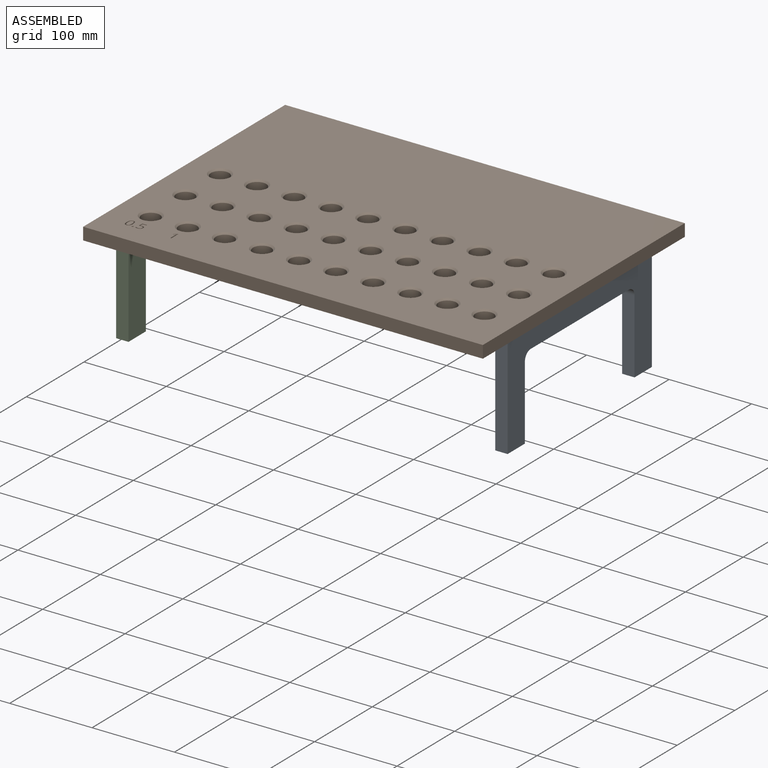
[diagram: assembled view]
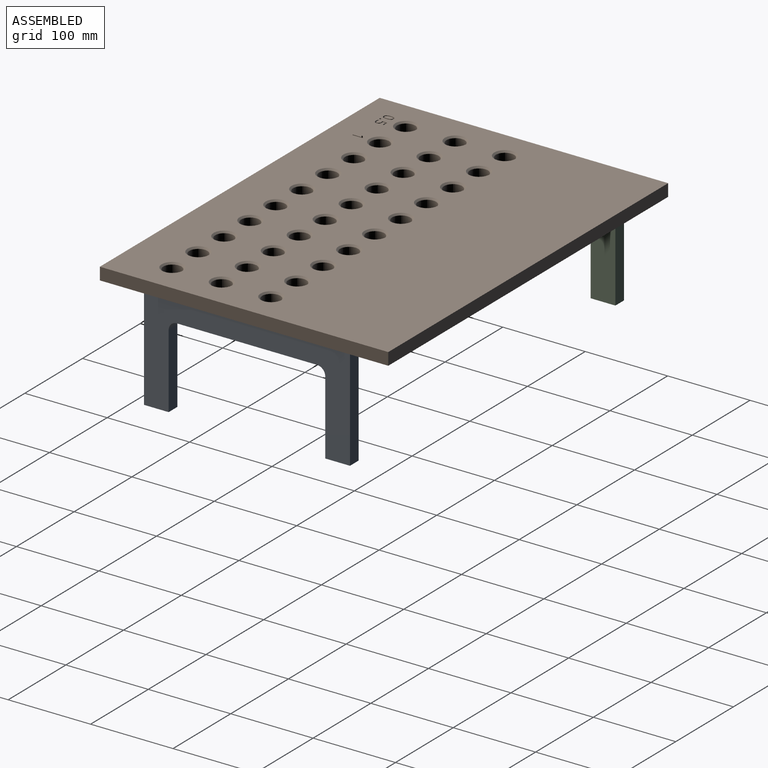
[diagram: assembled view, second angle]
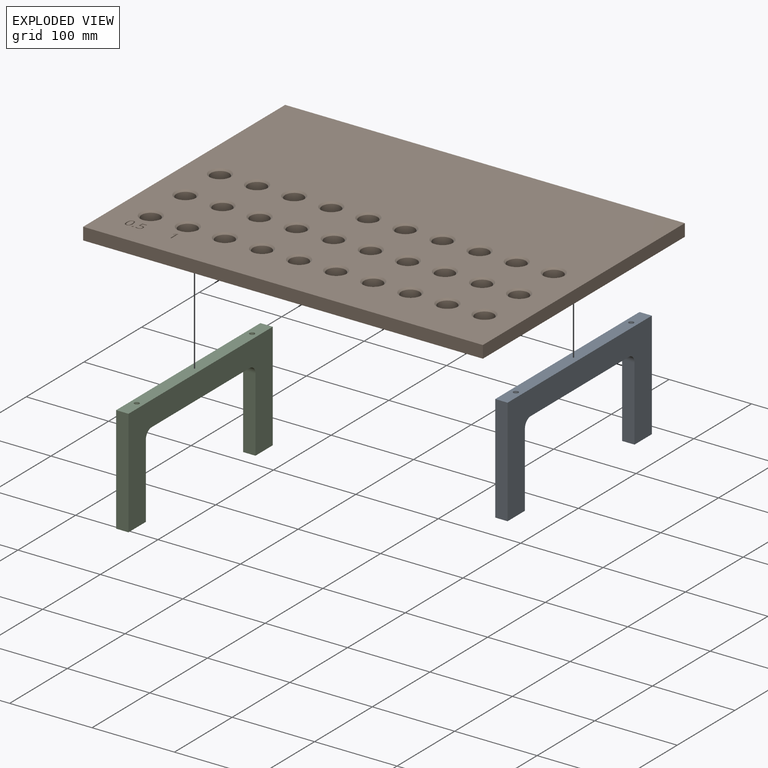
[diagram: exploded view]
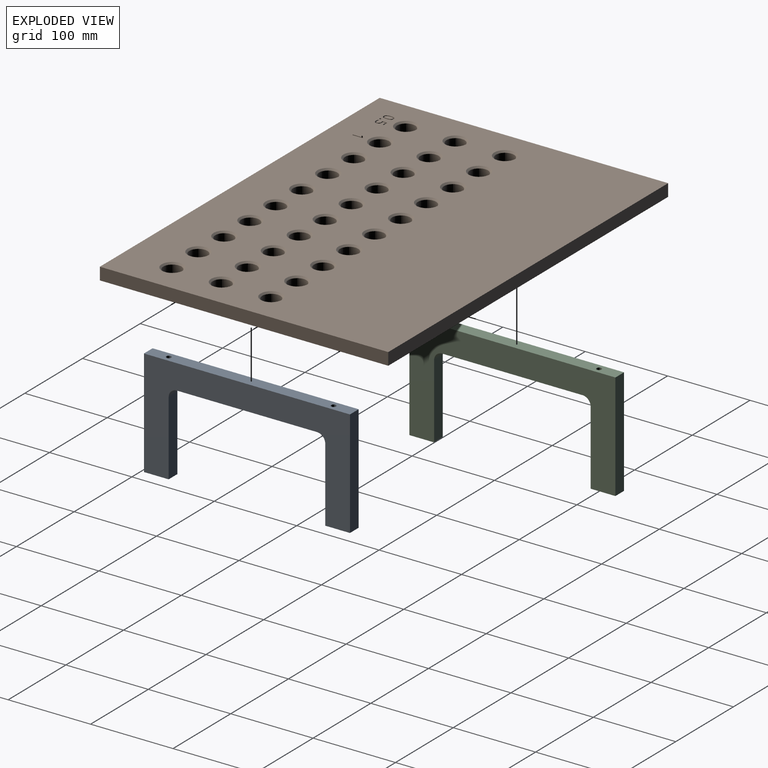
[diagram: exploded view, second angle]
ASSEMBLY  parts=3 mates=3
PART A: 16 faces, bbox 250x15x130 mm
  f0: plane 250x130mm, normal (0,-1,0), area 13542.9mm2, adj f2,f3,f4,f5,f6,f11,f12,f13
  f1: plane 250x130mm, normal (0,1,0), area 13542.9mm2, adj f2,f3,f4,f5,f6,f11,f12,f13
  f2: plane 30x15mm, normal (0,0,-1), area 450mm2, adj f0,f1,f4,f14
  f3: plane 130x15mm, normal (1,0,0), area 1950mm2, adj f0,f1,f5,f6
  f4: plane 130x15mm, normal (-1,0,0), area 1950mm2, adj f0,f1,f2,f6
  f5: plane 30x15mm, normal (0,0,-1), area 450mm2, adj f0,f1,f3,f15
  f6: plane 250x15mm, normal (0,0,1), area 3693.5mm2, adj f0,f1,f3,f4,f8,f10
  f7: cone r=0mm half-angle=59deg, axis (0,0,1), area 33mm2, adj f8
  f8: cylinder r=3mm len=7mm, axis (0,0,1), area 131.9mm2, adj f6,f7
  f9: cone r=0mm half-angle=59deg, axis (0,0,1), area 33mm2, adj f10
  f10: cylinder r=3mm len=7mm, axis (0,0,1), area 131.9mm2, adj f6,f9
  f11: cylinder r=10mm len=15mm, axis (0,-1,0), area 235.6mm2, adj f0,f1,f12,f15
  f12: plane 170x15mm, normal (0,0,-1), area 2550mm2, adj f0,f1,f11,f13
  f13: cylinder r=10mm len=15mm, axis (0,-1,0), area 235.6mm2, adj f0,f1,f12,f14
  f14: plane 90x15mm, normal (1,0,0), area 1350mm2, adj f0,f1,f2,f13
  f15: plane 90x15mm, normal (-1,0,0), area 1350mm2, adj f0,f1,f5,f11
PART B: 149 faces, bbox 485x350x15 mm
  f0: plane 485x350mm, normal (0,0,1), area 153686.1mm2, adj f1,f2,f3,f4,f7,f9,f11,f13
  f1: plane 485x15mm, normal (0,-1,0), area 7275mm2, adj f0,f2,f4,f5
  f2: plane 350x15mm, normal (1,0,0), area 5250mm2, adj f0,f1,f3,f5
  f3: plane 485x15mm, normal (0,1,0), area 7275mm2, adj f0,f2,f4,f5
  f4: plane 350x15mm, normal (-1,0,0), area 5250mm2, adj f0,f1,f3,f5
  f5: plane 485x350mm, normal (0,0,-1), area 150111.5mm2, adj f1,f2,f3,f4,f6,f8,f10,f12
  f6: cylinder r=11mm len=22mm, axis (0,0,1), area 898.5mm2, adj f5,f7
  f7: cone r=11mm half-angle=45deg, axis (0,0,1), area 213.3mm2, adj f0,f6
  f8: cylinder r=11mm len=22mm, axis (0,0,1), area 898.5mm2, adj f5,f9
  f9: cone r=11mm half-angle=45deg, axis (0,0,1), area 213.3mm2, adj f0,f8
  f10: cylinder r=11mm len=22mm, axis (0,0,1), area 898.5mm2, adj f5,f11
  f11: cone r=11mm half-angle=45deg, axis (0,0,1), area 213.3mm2, adj f0,f10
  f12: cylinder r=11mm len=22mm, axis (0,0,1), area 898.5mm2, adj f5,f13
  f13: cone r=11mm half-angle=45deg, axis (0,0,1), area 213.3mm2, adj f0,f12
  f14: cylinder r=11mm len=22mm, axis (0,0,1), area 898.5mm2, adj f5,f15
  f15: cone r=11mm half-angle=45deg, axis (0,0,1), area 213.3mm2, adj f0,f14
  f16: cylinder r=11mm len=22mm, axis (0,0,1), area 898.5mm2, adj f5,f17
  f17: cone r=11mm half-angle=45deg, axis (0,0,1), area 213.3mm2, adj f0,f16
  f18: cylinder r=11mm len=22mm, axis (0,0,1), area 898.5mm2, adj f5,f19
  f19: cone r=11mm half-angle=45deg, axis (0,0,1), area 213.3mm2, adj f0,f18
  f20: cylinder r=11mm len=22mm, axis (0,0,1), area 898.5mm2, adj f5,f21
  f21: cone r=11mm half-angle=45deg, axis (0,0,1), area 213.3mm2, adj f0,f20
  f22: cylinder r=11mm len=22mm, axis (0,0,1), area 898.5mm2, adj f5,f23
  f23: cone r=11mm half-angle=45deg, axis (0,0,1), area 213.3mm2, adj f0,f22
  f24: cylinder r=11mm len=22mm, axis (0,0,1), area 898.5mm2, adj f5,f25
  f25: cone r=11mm half-angle=45deg, axis (0,0,1), area 213.3mm2, adj f0,f24
  f26: cylinder r=11mm len=22mm, axis (0,0,1), area 898.5mm2, adj f5,f27
  f27: cone r=11mm half-angle=45deg, axis (0,0,1), area 213.3mm2, adj f0,f26
  f28: cylinder r=11mm len=22mm, axis (0,0,1), area 898.5mm2, adj f5,f29
  f29: cone r=11mm half-angle=45deg, axis (0,0,1), area 213.3mm2, adj f0,f28
  f30: cylinder r=11mm len=22mm, axis (0,0,1), area 898.5mm2, adj f5,f31
  f31: cone r=11mm half-angle=45deg, axis (0,0,1), area 213.3mm2, adj f0,f30
  f32: cylinder r=11mm len=22mm, axis (0,0,1), area 898.5mm2, adj f5,f33
  f33: cone r=11mm half-angle=45deg, axis (0,0,1), area 213.3mm2, adj f0,f32
  f34: cylinder r=11mm len=22mm, axis (0,0,1), area 898.5mm2, adj f5,f35
  f35: cone r=11mm half-angle=45deg, axis (0,0,1), area 213.3mm2, adj f0,f34
  f36: cylinder r=11mm len=22mm, axis (0,0,1), area 898.5mm2, adj f5,f37
  f37: cone r=11mm half-angle=45deg, axis (0,0,1), area 213.3mm2, adj f0,f36
  f38: cylinder r=11mm len=22mm, axis (0,0,1), area 898.5mm2, adj f5,f39
  f39: cone r=11mm half-angle=45deg, axis (0,0,1), area 213.3mm2, adj f0,f38
  f40: cylinder r=11mm len=22mm, axis (0,0,1), area 898.5mm2, adj f5,f41
  f41: cone r=11mm half-angle=45deg, axis (0,0,1), area 213.3mm2, adj f0,f40
  f42: cylinder r=11mm len=22mm, axis (0,0,1), area 898.5mm2, adj f5,f43
  f43: cone r=11mm half-angle=45deg, axis (0,0,1), area 213.3mm2, adj f0,f42
  f44: cylinder r=11mm len=22mm, axis (0,0,1), area 898.5mm2, adj f5,f45
  f45: cone r=11mm half-angle=45deg, axis (0,0,1), area 213.3mm2, adj f0,f44
  f46: cylinder r=11mm len=22mm, axis (0,0,1), area 898.5mm2, adj f5,f47
  f47: cone r=11mm half-angle=45deg, axis (0,0,1), area 213.3mm2, adj f0,f46
  f48: cylinder r=11mm len=22mm, axis (0,0,1), area 898.5mm2, adj f5,f49
  f49: cone r=11mm half-angle=45deg, axis (0,0,1), area 213.3mm2, adj f0,f48
  f50: cylinder r=11mm len=22mm, axis (0,0,1), area 898.5mm2, adj f5,f51
  f51: cone r=11mm half-angle=45deg, axis (0,0,1), area 213.3mm2, adj f0,f50
  f52: cylinder r=11mm len=22mm, axis (0,0,1), area 898.5mm2, adj f5,f53
  f53: cone r=11mm half-angle=45deg, axis (0,0,1), area 213.3mm2, adj f0,f52
  f54: cylinder r=11mm len=22mm, axis (0,0,1), area 898.5mm2, adj f5,f55
  f55: cone r=11mm half-angle=45deg, axis (0,0,1), area 213.3mm2, adj f0,f54
  f56: cylinder r=11mm len=22mm, axis (0,0,1), area 898.5mm2, adj f5,f57
  f57: cone r=11mm half-angle=45deg, axis (0,0,1), area 213.3mm2, adj f0,f56
  f58: cylinder r=11mm len=22mm, axis (0,0,1), area 898.5mm2, adj f5,f59
  f59: cone r=11mm half-angle=45deg, axis (0,0,1), area 213.3mm2, adj f0,f58
  f60: cylinder r=11mm len=22mm, axis (0,0,1), area 898.5mm2, adj f5,f61
  f61: cone r=11mm half-angle=45deg, axis (0,0,1), area 213.3mm2, adj f0,f60
  f62: cylinder r=11mm len=22mm, axis (0,0,1), area 898.5mm2, adj f5,f63
  f63: cone r=11mm half-angle=45deg, axis (0,0,1), area 213.3mm2, adj f0,f62
  f64: cylinder r=11mm len=22mm, axis (0,0,1), area 898.5mm2, adj f5,f65
  f65: cone r=11mm half-angle=45deg, axis (0,0,1), area 213.3mm2, adj f0,f64
  f66: plane 2x1.32mm, normal (0,1,0), area 2.6mm2, adj f0,f67,f74,f75
  f67: plane 11.9x2mm, normal (-1,0,0), area 23.8mm2, adj f0,f66,f68,f75
  f68: plane 2x1.14mm, normal (0,-1,0), area 2.3mm2, adj f0,f67,f69,f75
  f69: plane 3.15x2.44mm, normal (0.61,-0.79,0), area 8mm2, adj f0,f68,f70,f75
  f70: plane 2x0.93mm, normal (0.79,0.61,0), area 2.3mm2, adj f0,f69,f71,f75
  f71: extruded ~2x1.94mm, area 5mm2, adj f0,f70,f72,f75
  f72: extruded ~2x0.38mm, area 1mm2, adj f0,f71,f73,f75
  f73: extruded ~2x2mm, area 4mm2, adj f0,f72,f74,f75
  f74: plane 8.48x2mm, normal (1,0,0), area 17mm2, adj f0,f66,f73,f75
  f75: plane 11.9x4.29mm, normal (0,0,1), area 19.4mm2, adj f66,f67,f68,f69,f70,f71,f72,f73
  f76: extruded ~2.96x2mm, area 6.3mm2, adj f0,f77,f94,f95
  f77: extruded ~2x1.86mm, area 3.8mm2, adj f0,f76,f78,f95
  f78: plane 3.57x2mm, normal (-1,0.08,0), area 7.2mm2, adj f0,f77,f79,f95
  f79: plane 4.76x2mm, normal (0,1,0), area 9.5mm2, adj f0,f78,f80,f95
  f80: plane 2x1.24mm, normal (-1,0,0), area 2.5mm2, adj f0,f79,f81,f95
  f81: plane 5.92x2mm, normal (0,-1,0), area 11.8mm2, adj f0,f80,f82,f95
  f82: plane 5.57x2mm, normal (1,-0.08,0), area 11.2mm2, adj f0,f81,f83,f95
  f83: plane 2x0.7mm, normal (0.54,0.84,0), area 1.7mm2, adj f0,f82,f84,f95
  f84: extruded ~2.07x2mm, area 4.2mm2, adj f0,f83,f85,f95
  f85: extruded ~3.05x2.49mm, area 9mm2, adj f0,f84,f86,f95
  f86: extruded ~2x1.95mm, area 4.4mm2, adj f0,f85,f87,f95
  f87: extruded ~2.23x2mm, area 4.8mm2, adj f0,f86,f88,f95
  f88: extruded ~2x1.67mm, area 3.4mm2, adj f0,f87,f89,f95
  f89: extruded ~2x1.41mm, area 3.1mm2, adj f0,f88,f90,f95
  f90: plane 2x1.3mm, normal (1,0,0), area 2.6mm2, adj f0,f89,f91,f95
  f91: extruded ~3.07x2mm, area 6.3mm2, adj f0,f90,f92,f95
  f92: extruded ~3.24x2mm, area 7mm2, adj f0,f91,f93,f95
  f93: extruded ~2.9x2mm, area 6.5mm2, adj f0,f92,f94,f95
  f94: extruded ~2.55x2mm, area 5.7mm2, adj f0,f76,f93,f95
  f95: plane 12.06x7.49mm, normal (0,0,1), area 32.9mm2, adj f76,f77,f78,f79,f80,f81,f82,f83
  f96: extruded ~2x0.83mm, area 1.8mm2, adj f0,f97,f103,f104
  f97: extruded ~2x0.84mm, area 1.8mm2, adj f0,f96,f98,f104
  f98: extruded ~2x0.69mm, area 1.5mm2, adj f0,f97,f99,f104
  f99: extruded ~2x0.73mm, area 1.6mm2, adj f0,f98,f100,f104
  f100: extruded ~2x0.81mm, area 1.8mm2, adj f0,f99,f101,f104
  f101: extruded ~2x0.83mm, area 1.8mm2, adj f0,f100,f102,f104
  f102: extruded ~2x0.74mm, area 1.6mm2, adj f0,f101,f103,f104
  f103: extruded ~2x0.71mm, area 1.6mm2, adj f0,f96,f102,f104
  f104: plane 2.21x1.96mm, normal (0,0,1), area 3.6mm2, adj f96,f97,f98,f99,f100,f101,f102,f103
  f105: extruded ~3.78x2mm, area 7.7mm2, adj f106,f120,f121,f122
  f106: extruded ~3.77x2mm, area 7.7mm2, adj f105,f107,f121,f122
  f107: extruded ~2x1.94mm, area 4.8mm2, adj f106,f108,f121,f122
  f108: extruded ~2x1.96mm, area 4.9mm2, adj f107,f109,f121,f122
  f109: extruded ~3.76x2mm, area 7.7mm2, adj f108,f110,f121,f122
  f110: extruded ~3.77x2mm, area 7.7mm2, adj f109,f111,f121,f122
  f111: extruded ~2x1.96mm, area 4.9mm2, adj f110,f120,f121,f122
  f112: extruded ~4.61x2mm, area 9.5mm2, adj f0,f113,f119,f121
  f113: extruded ~4.55x2mm, area 9.4mm2, adj f0,f112,f114,f121
  f114: extruded ~2.94x2mm, area 7mm2, adj f0,f113,f115,f121
  f115: extruded ~2.95x2mm, area 6.9mm2, adj f0,f114,f116,f121
  f116: extruded ~4.61x2mm, area 9.5mm2, adj f0,f115,f117,f121
  f117: extruded ~4.57x2mm, area 9.5mm2, adj f0,f116,f118,f121
  f118: extruded ~2.92x2mm, area 6.9mm2, adj f0,f117,f119,f121
  f119: extruded ~2.98x2mm, area 7mm2, adj f0,f112,f118,f121
  f120: extruded ~2x1.94mm, area 4.8mm2, adj f105,f111,f121,f122
  f121: plane 12.25x7.87mm, normal (0,0,1), area 37.4mm2, adj f105,f106,f107,f108,f109,f110,f111,f112
  f122: plane 9.91x5.12mm, normal (0,0,1), area 42.8mm2, adj f105,f106,f107,f108,f109,f110,f111,f120
  f123: plane 269x5mm, normal (-1,0,0), area 1345mm2, adj f5,f124,f130,f131
  f124: cylinder r=3mm len=5mm, axis (0,0,-1), area 23.6mm2, adj f5,f123,f125,f131
  f125: plane 9x5mm, normal (0,1,0), area 45mm2, adj f5,f124,f126,f131
  f126: cylinder r=3mm len=5mm, axis (0,0,-1), area 23.6mm2, adj f5,f125,f127,f131
  f127: plane 269x5mm, normal (1,0,0), area 1345mm2, adj f5,f126,f128,f131
  f128: cylinder r=3mm len=5mm, axis (0,0,-1), area 23.6mm2, adj f5,f127,f129,f131
  f129: plane 9x5mm, normal (0,-1,0), area 45mm2, adj f5,f128,f130,f131
  f130: cylinder r=3mm len=5mm, axis (0,0,-1), area 23.6mm2, adj f5,f123,f129,f131
  f131: plane 275x15mm, normal (0,0,-1), area 4060.7mm2, adj f123,f124,f125,f126,f127,f128,f129,f130
  f132: cone r=0mm half-angle=59deg, axis (0,0,-1), area 33mm2, adj f133
  f133: cylinder r=3mm len=7mm, axis (0,0,-1), area 131.9mm2, adj f131,f132
  f134: cone r=0mm half-angle=59deg, axis (0,0,-1), area 33mm2, adj f135
  f135: cylinder r=3mm len=7mm, axis (0,0,-1), area 131.9mm2, adj f131,f134
  f136: plane 269x5mm, normal (1,0,0), area 1345mm2, adj f5,f137,f143,f144
  f137: cylinder r=3mm len=5mm, axis (0,0,-1), area 23.6mm2, adj f5,f136,f138,f144
  f138: plane 9x5mm, normal (0,-1,0), area 45mm2, adj f5,f137,f139,f144
  f139: cylinder r=3mm len=5mm, axis (0,0,-1), area 23.6mm2, adj f5,f138,f140,f144
  f140: plane 269x5mm, normal (-1,0,0), area 1345mm2, adj f5,f139,f141,f144
  f141: cylinder r=3mm len=5mm, axis (0,0,-1), area 23.6mm2, adj f5,f140,f142,f144
  f142: plane 9x5mm, normal (0,1,0), area 45mm2, adj f5,f141,f143,f144
  f143: cylinder r=3mm len=5mm, axis (0,0,-1), area 23.6mm2, adj f5,f136,f142,f144
  f144: plane 275x15mm, normal (0,0,-1), area 4060.7mm2, adj f136,f137,f138,f139,f140,f141,f142,f143
  f145: cone r=0mm half-angle=59deg, axis (0,0,-1), area 33mm2, adj f146
  f146: cylinder r=3mm len=7mm, axis (0,0,-1), area 131.9mm2, adj f144,f145
  f147: cone r=0mm half-angle=59deg, axis (0,0,-1), area 33mm2, adj f148
  f148: cylinder r=3mm len=7mm, axis (0,0,-1), area 131.9mm2, adj f144,f147
PART C: same geometry as A
PLACE A rot(axis=(0,0,-1),90deg) t=(230,6,-170.5)mm
PLACE B t=(0,6,-160.5)mm
PLACE C rot(axis=(0,0,1),90deg) t=(-230,6,-170.5)mm
MATE fastened C.f7 <-> B.f132  axis (0,0,1) through (-230,-94,-170.5)mm
MATE cylindrical B.f147 <-> A.f7  axis (0,0,-1) through (230,106,-167)mm
MATE fastened B.f144 <-> A.f6  axis (0,0,-1) through (230,6,-170.5)mm
